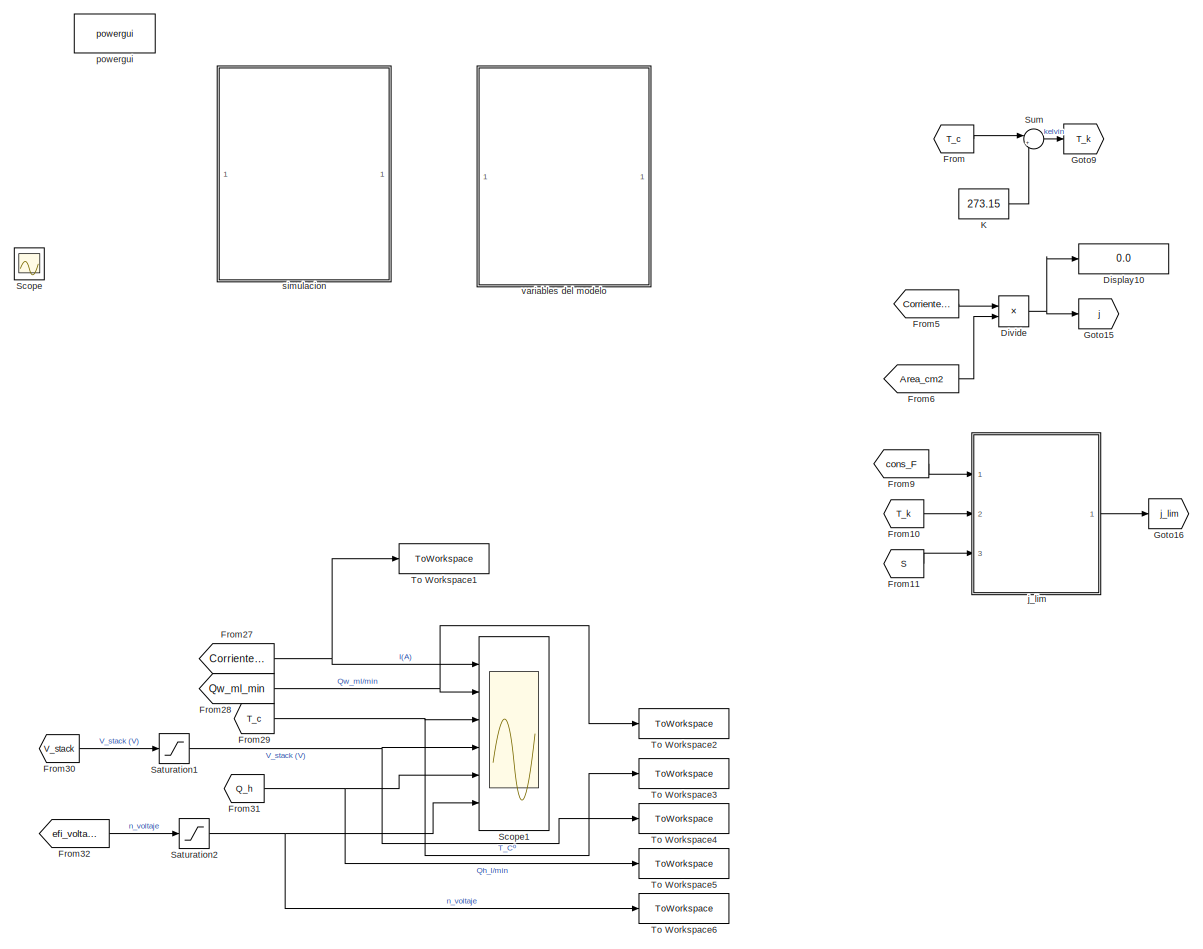
[diagram: root canvas - part 1/3, left side, full height]
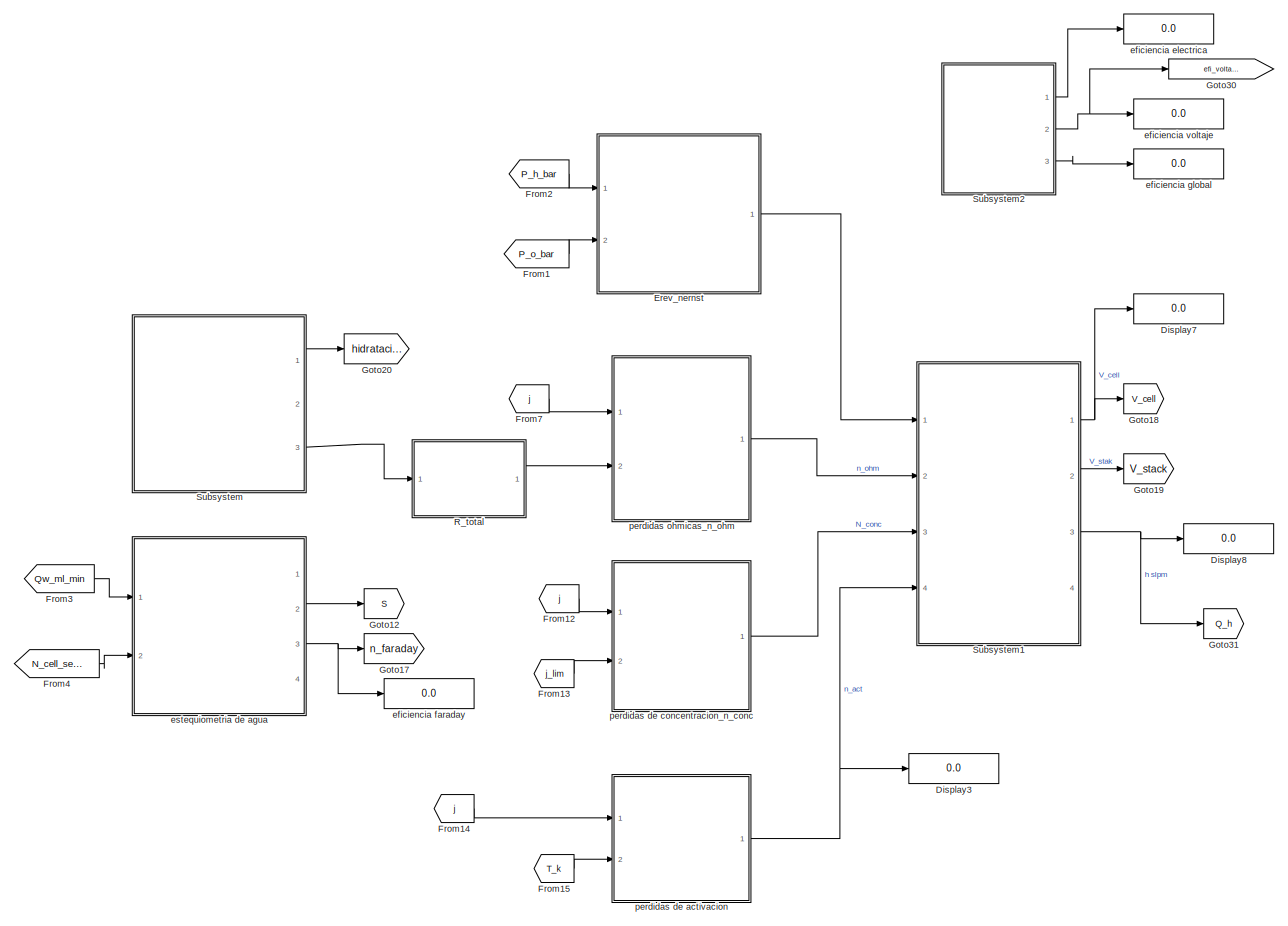
[diagram: root canvas - part 2/3, middle right region]
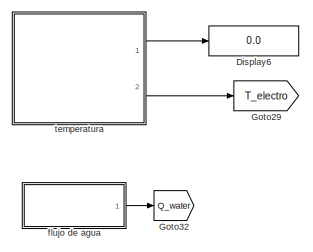
[diagram: root canvas - part 3/3, bottom right region]
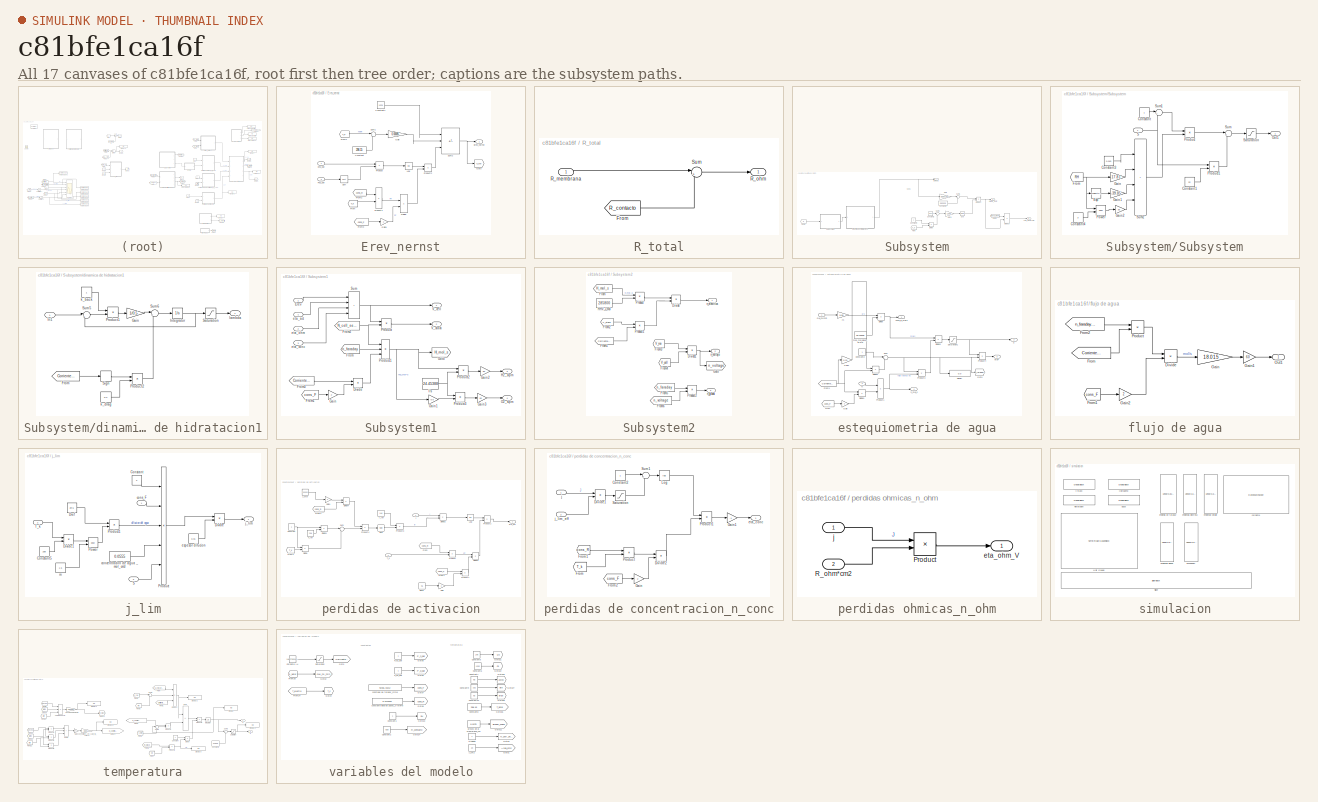
[diagram: thumbnail index - all 17 canvases of the model, root first then tree order]
MODEL slx_c81bfe1ca16f
KIND model
CONFIG AbsTol = auto
CONFIG EnableMultiTasking = off
CONFIG FixedStep = auto
CONFIG MaxStep = auto
CONFIG MinStep = auto
CONFIG RelTol = 1e-3
CONFIG SampleTimeConstraint = Unconstrained
CONFIG SolverName = VariableStepAuto
CONFIG StartTime = 0.0
CONFIG StopTime = inf
BLOCK [Display] Display10
  Decimation = 1
  Ports = [1]
BLOCK [Display] Display3
  Decimation = 1
  Ports = [1]
BLOCK [Display] Display6
  Decimation = 1
  Ports = [1]
BLOCK [Display] Display7
  Decimation = 1
  Ports = [1]
BLOCK [Display] Display8
  Decimation = 1
  Ports = [1]
BLOCK [Product] Divide
  Inputs = */
  Ports = [2, 1]
BLOCK [SubSystem] Erev_nernst
  Ports = [2, 1]
  RequestExecContextInheritance = off
BLOCK [Constant] Erev_nernst/Constant
  Value = 298.15
BLOCK [Constant] Erev_nernst/Constant1
  Value = 1.229
BLOCK [Product] Erev_nernst/Divide
  Inputs = */
  Ports = [2, 1]
BLOCK [Outport] Erev_nernst/Erev_nernst
BLOCK [From] Erev_nernst/From
  GotoTag = T_k
  TagVisibility = global
BLOCK [From] Erev_nernst/From1
  GotoTag = T_k
  TagVisibility = global
BLOCK [From] Erev_nernst/From2
  GotoTag = cons_R
  TagVisibility = global
BLOCK [From] Erev_nernst/From3
  GotoTag = cons_F
  TagVisibility = global
BLOCK [Gain] Erev_nernst/Gain
  Gain = 0.00085
BLOCK [Gain] Erev_nernst/Gain1
  Gain = 2
BLOCK [Goto] Erev_nernst/Goto
  GotoTag = V_rev
  TagVisibility = global
BLOCK [Math] Erev_nernst/Log
  Operator = log
  Ports = [1, 1]
BLOCK [Inport] Erev_nernst/Po2_bar
  Port = 2
BLOCK [Product] Erev_nernst/Product
  Ports = [2, 1]
BLOCK [Product] Erev_nernst/Product1
  Ports = [2, 1]
BLOCK [Product] Erev_nernst/Product2
  Ports = [2, 1]
BLOCK [Sqrt] Erev_nernst/Sqrt
BLOCK [Sum] Erev_nernst/Sum1
  Inputs = |+-
  Ports = [2, 1]
BLOCK [Sum] Erev_nernst/Sum2
  IconShape = rectangular
  Inputs = |+-+
  Ports = [3, 1]
BLOCK [Inport] Erev_nernst/ph2_bar
BLOCK [From] From
  GotoTag = T_c
  TagVisibility = global
BLOCK [From] From1
  GotoTag = P_o_bar
  TagVisibility = global
BLOCK [From] From10
  GotoTag = T_k
  TagVisibility = global
BLOCK [From] From11
  GotoTag = S
  TagVisibility = global
BLOCK [From] From12
  GotoTag = j
  TagVisibility = global
BLOCK [From] From13
  GotoTag = j_lim
  TagVisibility = global
BLOCK [From] From14
  GotoTag = j
  TagVisibility = global
BLOCK [From] From15
  GotoTag = T_k
  TagVisibility = global
BLOCK [From] From2
  GotoTag = P_h_bar
  TagVisibility = global
BLOCK [From] From27
  GotoTag = Corriente_A
  TagVisibility = global
BLOCK [From] From28
  GotoTag = Qw_ml_min
  TagVisibility = global
BLOCK [From] From29
  GotoTag = T_c
  TagVisibility = global
BLOCK [From] From3
  GotoTag = Qw_ml_min
  TagVisibility = global
BLOCK [From] From30
  GotoTag = V_stack
  TagVisibility = global
BLOCK [From] From31
  GotoTag = Q_h
  TagVisibility = global
BLOCK [From] From32
  GotoTag = efi_voltaje
  TagVisibility = global
BLOCK [From] From4
  GotoTag = N_cell_serie
  TagVisibility = global
BLOCK [From] From5
  GotoTag = Corriente_A
  TagVisibility = global
BLOCK [From] From6
  GotoTag = Area_cm2
  TagVisibility = global
BLOCK [From] From7
  GotoTag = j
  TagVisibility = global
BLOCK [From] From9
  GotoTag = cons_F
  TagVisibility = global
BLOCK [Goto] Goto12
  GotoTag = S
  TagVisibility = global
BLOCK [Goto] Goto15
  GotoTag = j
  TagVisibility = global
BLOCK [Goto] Goto16
  GotoTag = j_lim
  TagVisibility = global
BLOCK [Goto] Goto17
  GotoTag = n_faraday
  TagVisibility = global
BLOCK [Goto] Goto18
  GotoTag = V_cell
  TagVisibility = global
BLOCK [Goto] Goto19
  GotoTag = V_stack
  TagVisibility = global
BLOCK [Goto] Goto20
  GotoTag = hidratacion
  TagVisibility = global
BLOCK [Goto] Goto29
  GotoTag = T_electro
  TagVisibility = global
BLOCK [Goto] Goto30
  GotoTag = efi_voltaje
  TagVisibility = global
BLOCK [Goto] Goto31
  GotoTag = Q_h
  TagVisibility = global
BLOCK [Goto] Goto32
  GotoTag = Q_water
  TagVisibility = global
BLOCK [Goto] Goto9
  GotoTag = T_k
  TagVisibility = global
BLOCK [Constant] K
  Value = 273.15
BLOCK [SubSystem] R_total
  Ports = [1, 1]
  RequestExecContextInheritance = off
BLOCK [From] R_total/From
  GotoTag = R_contacto
  TagVisibility = global
BLOCK [Inport] R_total/R_membrana
BLOCK [Outport] R_total/R_ohm
BLOCK [Sum] R_total/Sum
  Inputs = |++
  Ports = [2, 1]
BLOCK [Saturate] Saturation1
  LowerLimit = 0
  UpperLimit = 3
BLOCK [Saturate] Saturation2
  LowerLimit = 0
  UpperLimit = 1.1
BLOCK [Scope] Scope
  Floating = off
  NumInputPorts = 1
  Ports = [1]
  ScopeSpecificationString = Simulink.scopes.TimeScopeBlockCfg('CurrentConfiguration', extmgr.ConfigurationSet(extmgr.Configuration('Core','General UI',true),extmgr.Configuration('Core','Source UI',true),extmgr.Configuration('Sources','WiredSimulink',true),extmgr.Configuration('Visuals','Time Domain',true,'SerializedDisplays',{struct('MinYLimReal','-1.00000','MaxYLimReal','1.00000','YLabelReal','','MinYLimMag','0.00000','MaxY...<+1392ch>
BLOCK [Scope] Scope1
  Floating = off
  NumInputPorts = 6
  Ports = [6]
  ScopeSpecificationString = Simulink.scopes.TimeScopeBlockCfg('CurrentConfiguration', extmgr.ConfigurationSet(extmgr.Configuration('Core','General UI',true,'FigureColor',[1 1 1]),extmgr.Configuration('Core','Source UI',true),extmgr.Configuration('Sources','WiredSimulink',true,'DataLoggingVariableName','ScopeData1'),extmgr.Configuration('Visuals','Time Domain',true,'SerializedDisplays',{struct('MinYLimReal','-2.57054','MaxYLi...<+5587ch>
BLOCK [SubSystem] Subsystem
  Ports = [0, 3]
  RequestExecContextInheritance = off
BLOCK [Outport] Subsystem/ASR_Ohm*cm2
  Port = 3
BLOCK [Constant] Subsystem/Constant1
  Value = 0.00326
BLOCK [Constant] Subsystem/Constant2
  Value = 1/303
BLOCK [Constant] Subsystem/Constant4
BLOCK [Product] Subsystem/Divide
  Inputs = */
  Ports = [2, 1]
BLOCK [Product] Subsystem/Divide1
  Inputs = */
  Ports = [2, 1]
BLOCK [Math] Subsystem/Exp
  Ports = [1, 1]
BLOCK [From] Subsystem/From
  GotoTag = T_k
  TagVisibility = global
BLOCK [From] Subsystem/From1
  GotoTag = grosor_mem
  TagVisibility = global
BLOCK [From] Subsystem/From2
  GotoTag = S
  TagVisibility = global
BLOCK [Gain] Subsystem/Gain
  Gain = 0.005139
BLOCK [Gain] Subsystem/Gain1
  Gain = 1268
BLOCK [Product] Subsystem/Product
  Ports = [2, 1]
BLOCK [SubSystem] Subsystem/Subsystem
  Ports = [1, 1]
  RequestExecContextInheritance = off
BLOCK [Constant] Subsystem/Subsystem/Constant
BLOCK [Constant] Subsystem/Subsystem/Constant1
  Value = 22
BLOCK [Constant] Subsystem/Subsystem/Constant3
  Value = 0.043
BLOCK [Constant] Subsystem/Subsystem/Constant4
  Value = 3
BLOCK [Math] Subsystem/Subsystem/Exp
  Operator = magnitude^2
  Ports = [1, 1]
BLOCK [From] Subsystem/Subsystem/From
  GotoTag = RH
  TagVisibility = global
BLOCK [Gain] Subsystem/Subsystem/Gain
  Gain = 17.81
BLOCK [Gain] Subsystem/Subsystem/Gain1
  Gain = -39.85
BLOCK [Gain] Subsystem/Subsystem/Gain2
  Gain = 36
BLOCK [Outport] Subsystem/Subsystem/Out1
BLOCK [Math] Subsystem/Subsystem/Power
  Operator = pow
  Ports = [2, 1]
BLOCK [Product] Subsystem/Subsystem/Product
  Ports = [2, 1]
BLOCK [Product] Subsystem/Subsystem/Product1
  Ports = [2, 1]
BLOCK [Inport] Subsystem/Subsystem/S
BLOCK [Saturate] Subsystem/Subsystem/Saturation
  LowerLimit = 0
  UpperLimit = 22
BLOCK [Sum] Subsystem/Subsystem/Sum
  Inputs = |++
  Ports = [2, 1]
BLOCK [Sum] Subsystem/Subsystem/Sum1
  Inputs = |+-
  Ports = [2, 1]
BLOCK [Sum] Subsystem/Subsystem/Sum2
  IconShape = rectangular
  Inputs = |++++
  Ports = [4, 1]
BLOCK [Sum] Subsystem/Sum1
  Inputs = |+-
  Ports = [2, 1]
BLOCK [Sum] Subsystem/Sum2
  Inputs = |+-
  Ports = [2, 1]
BLOCK [SubSystem] Subsystem/dinamica de hidratacion1
  Ports = [1, 1]
  RequestExecContextInheritance = off
BLOCK [From] Subsystem/dinamica de hidratacion1/From
  GotoTag = Corriente_A
  TagVisibility = global
BLOCK [Gain] Subsystem/dinamica de hidratacion1/Gain
  Gain = 1/0.5
BLOCK [Inport] Subsystem/dinamica de hidratacion1/In1
BLOCK [Integrator] Subsystem/dinamica de hidratacion1/Integrator
  Ports = [1, 1]
BLOCK [Product] Subsystem/dinamica de hidratacion1/Product1
  Ports = [2, 1]
BLOCK [Product] Subsystem/dinamica de hidratacion1/Product2
  Ports = [2, 1]
BLOCK [Saturate] Subsystem/dinamica de hidratacion1/Saturation
  LowerLimit = 0
  UpperLimit = 22
BLOCK [Signum] Subsystem/dinamica de hidratacion1/Sign
BLOCK [Sum] Subsystem/dinamica de hidratacion1/Sum5
  Inputs = |+-
  Ports = [2, 1]
BLOCK [Sum] Subsystem/dinamica de hidratacion1/Sum6
  Inputs = |++
  Ports = [2, 1]
BLOCK [Constant] Subsystem/dinamica de hidratacion1/k_back
BLOCK [Constant] Subsystem/dinamica de hidratacion1/k_drag
  Value = 0.2
BLOCK [Outport] Subsystem/dinamica de hidratacion1/lambda
BLOCK [Outport] Subsystem/lambda
BLOCK [Outport] Subsystem/sigma_S//cm
  Port = 2
BLOCK [SubSystem] Subsystem1
  Ports = [4, 4]
  RequestExecContextInheritance = off
BLOCK [Product] Subsystem1/Divide
  Inputs = */
  Ports = [2, 1]
BLOCK [Inport] Subsystem1/Erev
BLOCK [From] Subsystem1/From
  GotoTag = n_faraday
  TagVisibility = global
BLOCK [From] Subsystem1/From1
  GotoTag = cons_F
  TagVisibility = global
BLOCK [From] Subsystem1/From2
  GotoTag = N_cell_serie
  TagVisibility = global
BLOCK [From] Subsystem1/From3
  GotoTag = Corriente_A
  TagVisibility = global
BLOCK [Gain] Subsystem1/Gain
  Gain = 2
BLOCK [Gain] Subsystem1/Gain1
  Gain = 0.5
BLOCK [Gain] Subsystem1/Gain2
  Gain = 60
BLOCK [Gain] Subsystem1/Gain3
  Gain = 60
BLOCK [Goto] Subsystem1/Goto
  GotoTag = H_mol_s
  TagVisibility = global
BLOCK [Outport] Subsystem1/H2_slpm
  Port = 3
BLOCK [Outport] Subsystem1/O2_slpm
  Port = 4
BLOCK [Product] Subsystem1/Product
  Ports = [2, 1]
BLOCK [Product] Subsystem1/Product1
  Inputs = 3
  Ports = [3, 1]
BLOCK [Product] Subsystem1/Product2
  Ports = [2, 1]
BLOCK [Product] Subsystem1/Product3
  Ports = [2, 1]
BLOCK [Sum] Subsystem1/Sum
  IconShape = rectangular
  Inputs = |++++
  Ports = [4, 1]
BLOCK [Outport] Subsystem1/V_cell
BLOCK [Outport] Subsystem1/V_stack
  Port = 2
BLOCK [Inport] Subsystem1/eta_act
  Port = 4
BLOCK [Inport] Subsystem1/eta_conc
  Port = 3
BLOCK [Inport] Subsystem1/eta_ohm
  Port = 2
BLOCK [Constant] Subsystem1/l//s
  Value = 24.45388
BLOCK [SubSystem] Subsystem2
  Ports = [0, 3]
  RequestExecContextInheritance = off
BLOCK [Product] Subsystem2/Divide
  Inputs = */
  Ports = [2, 1]
BLOCK [Product] Subsystem2/Divide1
  Inputs = */
  Ports = [2, 1]
BLOCK [From] Subsystem2/From
  GotoTag = H_mol_s
  TagVisibility = global
BLOCK [From] Subsystem2/From1
  GotoTag = Corriente_A
  TagVisibility = global
BLOCK [From] Subsystem2/From2
  GotoTag = V_stack
  TagVisibility = global
BLOCK [From] Subsystem2/From3
  GotoTag = V_rev
  TagVisibility = global
BLOCK [From] Subsystem2/From4
  GotoTag = V_cell
  TagVisibility = global
BLOCK [From] Subsystem2/From5
  GotoTag = n_faraday
  TagVisibility = global
BLOCK [From] Subsystem2/From6
  GotoTag = n_voltage
BLOCK [Goto] Subsystem2/Goto
  GotoTag = n_voltage
BLOCK [Constant] Subsystem2/HHV_J_mol
  Value = 285800
BLOCK [Product] Subsystem2/Product
  Ports = [2, 1]
BLOCK [Product] Subsystem2/Product1
  Ports = [2, 1]
BLOCK [Product] Subsystem2/Product2
  Ports = [2, 1]
BLOCK [Outport] Subsystem2/n_electrica
BLOCK [Outport] Subsystem2/n_global
  Port = 3
BLOCK [Outport] Subsystem2/n_voltaje
  Port = 2
BLOCK [Sum] Sum
  Inputs = |++
  Ports = [2, 1]
BLOCK [ToWorkspace] To Workspace1
  FixptAsFi = on
  MaxDataPoints = inf
  Ports = [1]
  SampleTime = -1
  SaveFormat = Timeseries
  VariableName = I
BLOCK [ToWorkspace] To Workspace2
  FixptAsFi = on
  MaxDataPoints = inf
  Ports = [1]
  SampleTime = -1
  SaveFormat = Timeseries
  VariableName = Qw
BLOCK [ToWorkspace] To Workspace3
  FixptAsFi = on
  MaxDataPoints = inf
  Ports = [1]
  SampleTime = -1
  SaveFormat = Timeseries
  VariableName = T
BLOCK [ToWorkspace] To Workspace4
  FixptAsFi = on
  MaxDataPoints = inf
  Ports = [1]
  SampleTime = -1
  SaveFormat = Timeseries
  VariableName = tension
BLOCK [ToWorkspace] To Workspace5
  FixptAsFi = on
  MaxDataPoints = inf
  Ports = [1]
  SampleTime = -1
  SaveFormat = Timeseries
  VariableName = Qh
BLOCK [ToWorkspace] To Workspace6
  FixptAsFi = on
  MaxDataPoints = inf
  Ports = [1]
  SampleTime = -1
  SaveFormat = Timeseries
  VariableName = n_v
BLOCK [Display] eficiencia electrica
  Decimation = 1
  Ports = [1]
BLOCK [Display] eficiencia faraday
  Decimation = 1
  Ports = [1]
BLOCK [Display] eficiencia global
  Decimation = 1
  Ports = [1]
BLOCK [Display] eficiencia voltaje
  Decimation = 1
  Ports = [1]
BLOCK [SubSystem] estequiometria de agua
  Ports = [2, 4]
  RequestExecContextInheritance = off
BLOCK [Constant] estequiometria de agua/Constant2
BLOCK [Display] estequiometria de agua/Display
  Decimation = 1
  Ports = [1]
BLOCK [Product] estequiometria de agua/Divide
  Inputs = */
  Ports = [2, 1]
BLOCK [Product] estequiometria de agua/Divide1
  Inputs = */
  Ports = [2, 1]
BLOCK [Product] estequiometria de agua/Divide2
  Inputs = */
  Ports = [2, 1]
BLOCK [Product] estequiometria de agua/Divide3
  Inputs = */
  Ports = [2, 1]
BLOCK [From] estequiometria de agua/From
  GotoTag = cons_F
  TagVisibility = global
BLOCK [From] estequiometria de agua/From1
  GotoTag = Corriente_A
  TagVisibility = global
BLOCK [Gain] estequiometria de agua/Gain
  Gain = 2
BLOCK [Gain] estequiometria de agua/Gain1
  Gain = 0.01
BLOCK [Goto] estequiometria de agua/Goto
  GotoTag = n_faraday_base
  TagVisibility = global
BLOCK [Inport] estequiometria de agua/N
  Port = 2
BLOCK [Product] estequiometria de agua/Product1
  Ports = [2, 1]
BLOCK [Product] estequiometria de agua/Product3
  Ports = [2, 1]
BLOCK [Product] estequiometria de agua/Product4
  Ports = [2, 1]
BLOCK [Inport] estequiometria de agua/Qw_ml//min
BLOCK [Outport] estequiometria de agua/S
  Port = 2
BLOCK [Saturate] estequiometria de agua/Saturation1
  LowerLimit = 0
  UpperLimit = 1
BLOCK [Sum] estequiometria de agua/Sum
  Inputs = |+-
  Ports = [2, 1]
BLOCK [Outport] estequiometria de agua/etaF
  Port = 3
BLOCK [Outport] estequiometria de agua/h_mol_s
  Port = 4
BLOCK [Gain] estequiometria de agua/l//s
  Gain = 1/60
BLOCK [Constant] estequiometria de agua/mas_mol_agua_g//mol
  Value = 18.01528
BLOCK [Outport] estequiometria de agua/nh2o_in_mol//s
BLOCK [SubSystem] flujo de agua
  Ports = [0, 1]
  RequestExecContextInheritance = off
BLOCK [Product] flujo de agua/Divide
  Inputs = */
  Ports = [2, 1]
BLOCK [From] flujo de agua/From
  GotoTag = Corriente_A
  TagVisibility = global
BLOCK [From] flujo de agua/From1
  GotoTag = cons_F
  TagVisibility = global
BLOCK [From] flujo de agua/From2
  GotoTag = n_faraday_base
  TagVisibility = global
BLOCK [Gain] flujo de agua/Gain
  Gain = 18.015
BLOCK [Gain] flujo de agua/Gain1
  Gain = 60
BLOCK [Gain] flujo de agua/Gain2
  Gain = 2
BLOCK [Outport] flujo de agua/Out1
BLOCK [Product] flujo de agua/Product
  Ports = [2, 1]
BLOCK [SubSystem] j_lim
  Ports = [3, 1]
  RequestExecContextInheritance = off
BLOCK [Constant] j_lim/Constant
  Value = 2
BLOCK [Constant] j_lim/Constant5
  Value = 298
BLOCK [Product] j_lim/Divide
  Inputs = */
  Ports = [2, 1]
BLOCK [Product] j_lim/Divide1
  Inputs = */
  Ports = [2, 1]
BLOCK [Constant] j_lim/Dref
  Value = 2e-6
BLOCK [Math] j_lim/Power
  Operator = pow
  Ports = [2, 1]
BLOCK [Product] j_lim/Product
  Inputs = 5
  Ports = [5, 1]
BLOCK [Product] j_lim/Product1
  Ports = [2, 1]
BLOCK [Inport] j_lim/S
  Port = 3
BLOCK [Inport] j_lim/T_k
  Port = 2
BLOCK [Constant] j_lim/concentracion de agua _mol_cm3
  Value = 0.0555
BLOCK [Inport] j_lim/cons_F
BLOCK [Constant] j_lim/espesor difucion
  Value = 0.01
BLOCK [Outport] j_lim/j_lim
BLOCK [Constant] j_lim/m
  Value = 1.5
BLOCK [SubSystem] perdidas de activacion
  Ports = [2, 1]
  RequestExecContextInheritance = off
BLOCK [Constant] perdidas de activacion/Constant
BLOCK [Product] perdidas de activacion/Divide
  Inputs = */
  Ports = [2, 1]
BLOCK [Product] perdidas de activacion/Divide1
  Inputs = */
  Ports = [2, 1]
BLOCK [Product] perdidas de activacion/Divide2
  Inputs = */
  Ports = [2, 1]
BLOCK [Product] perdidas de activacion/Divide3
  Inputs = */
  Ports = [2, 1]
BLOCK [Product] perdidas de activacion/Divide4
  Inputs = */
  Ports = [2, 1]
BLOCK [Math] perdidas de activacion/Exp
  Ports = [1, 1]
BLOCK [From] perdidas de activacion/From
  GotoTag = cons_R
  TagVisibility = global
BLOCK [From] perdidas de activacion/From1
  GotoTag = cons_F
  TagVisibility = global
BLOCK [From] perdidas de activacion/From2
  GotoTag = cons_R
  TagVisibility = global
BLOCK [From] perdidas de activacion/From3
  GotoTag = T_k
  TagVisibility = global
BLOCK [Gain] perdidas de activacion/Gain
  Gain = 2
BLOCK [Gain] perdidas de activacion/Gain1
  Gain = -1
BLOCK [Constant] perdidas de activacion/J_mol
  Value = 60000
BLOCK [Math] perdidas de activacion/Log
  Operator = log
  Ports = [1, 1]
BLOCK [Product] perdidas de activacion/Product
  Ports = [2, 1]
BLOCK [Product] perdidas de activacion/Product1
  Ports = [2, 1]
BLOCK [Product] perdidas de activacion/Product2
  Ports = [2, 1]
BLOCK [Product] perdidas de activacion/Product3
  Ports = [2, 1]
BLOCK [Product] perdidas de activacion/Product4
  Ports = [2, 1]
BLOCK [Sum] perdidas de activacion/Sum
  Inputs = |-+
  Ports = [2, 1]
BLOCK [Inport] perdidas de activacion/T_k
  Port = 2
BLOCK [Constant] perdidas de activacion/T_ref
  Value = 298
BLOCK [Constant] perdidas de activacion/alpha
  Value = 0.5
BLOCK [Outport] perdidas de activacion/eta_act
BLOCK [Inport] perdidas de activacion/j
BLOCK [Constant] perdidas de activacion/j _ref
  Value = 1e-6
BLOCK [SubSystem] perdidas de concentracion_n_conc
  Ports = [2, 1]
  RequestExecContextInheritance = off
BLOCK [Constant] perdidas de concentracion_n_conc/Constant2
BLOCK [Product] perdidas de concentracion_n_conc/Divide1
  Inputs = */
  Ports = [2, 1]
BLOCK [Product] perdidas de concentracion_n_conc/Divide2
  Inputs = */
  Ports = [2, 1]
BLOCK [From] perdidas de concentracion_n_conc/From
  GotoTag = T_k
  TagVisibility = global
BLOCK [From] perdidas de concentracion_n_conc/From1
  GotoTag = cons_R
  TagVisibility = global
BLOCK [From] perdidas de concentracion_n_conc/From2
  GotoTag = cons_F
  TagVisibility = global
BLOCK [Gain] perdidas de concentracion_n_conc/Gain
  Gain = 2
BLOCK [Gain] perdidas de concentracion_n_conc/Gain1
  Gain = -1
BLOCK [Math] perdidas de concentracion_n_conc/Log
  Operator = log
  Ports = [1, 1]
BLOCK [Product] perdidas de concentracion_n_conc/Product
  Ports = [2, 1]
BLOCK [Product] perdidas de concentracion_n_conc/Product1
  Ports = [2, 1]
BLOCK [Saturate] perdidas de concentracion_n_conc/Saturation
  LowerLimit = 0
  UpperLimit = 0.999
BLOCK [Sum] perdidas de concentracion_n_conc/Sum1
  Inputs = |+-
  Ports = [2, 1]
BLOCK [Outport] perdidas de concentracion_n_conc/eta_conc
BLOCK [Inport] perdidas de concentracion_n_conc/j
BLOCK [Inport] perdidas de concentracion_n_conc/j_lim_eff
  Port = 2
BLOCK [SubSystem] perdidas ohmicas_n_ohm
  Ports = [2, 1]
  RequestExecContextInheritance = off
BLOCK [Product] perdidas ohmicas_n_ohm/Product
  Ports = [2, 1]
BLOCK [Inport] perdidas ohmicas_n_ohm/R_ohm*cm2
  Port = 2
BLOCK [Outport] perdidas ohmicas_n_ohm/eta_ohm_V
BLOCK [Inport] perdidas ohmicas_n_ohm/j
BLOCK [Reference] powergui  REF=spspowerguiLib/powergui
  Ports = []
  Priority = 1
  SourceBlock = spspowerguiLib/powergui
  SourceProductBaseCode = PS
  SourceType = PSB option menu block
BLOCK [SubSystem] simulacion
  Ports = []
  RequestExecContextInheritance = off
BLOCK [SemiCircularGaugeBlock] simulacion/Half Gauge
  ScaleMax = 80
  ScaleMin = 20
BLOCK [DisplayBlock] simulacion/Hidrogeno
  Format = short
  LabelPosition = Hide
  Transparency = 1
BLOCK [SliderBlock] simulacion/Slider
  ScaleMax = 40
BLOCK [DisplayBlock] simulacion/V stack
  Format = short
  LabelPosition = Hide
  Transparency = 1
BLOCK [DisplayBlock] simulacion/agua
  Format = short
  LabelPosition = Hide
  Transparency = 1
BLOCK [DashboardScope] simulacion/corriente
  Ymax = 40
BLOCK [LinearGaugeBlock] simulacion/eficiencia electrica
  LabelPosition = Hide
  ScaleMax = 1
BLOCK [LinearGaugeBlock] simulacion/eficiencia global
  LabelPosition = Hide
  ScaleMax = 1
BLOCK [LinearGaugeBlock] simulacion/eficiencia voltaje
  LabelPosition = Hide
  ScaleMax = 1
BLOCK [LinearGaugeBlock] simulacion/eficienia de faraday
  LabelPosition = Hide
  ScaleMax = 1
BLOCK [DisplayBlock] simulacion/hidratacion
  Format = short
  LabelPosition = Hide
  Transparency = 1
BLOCK [LinearGaugeBlock] simulacion/inundacion
  LabelPosition = Hide
  ScaleMax = 1
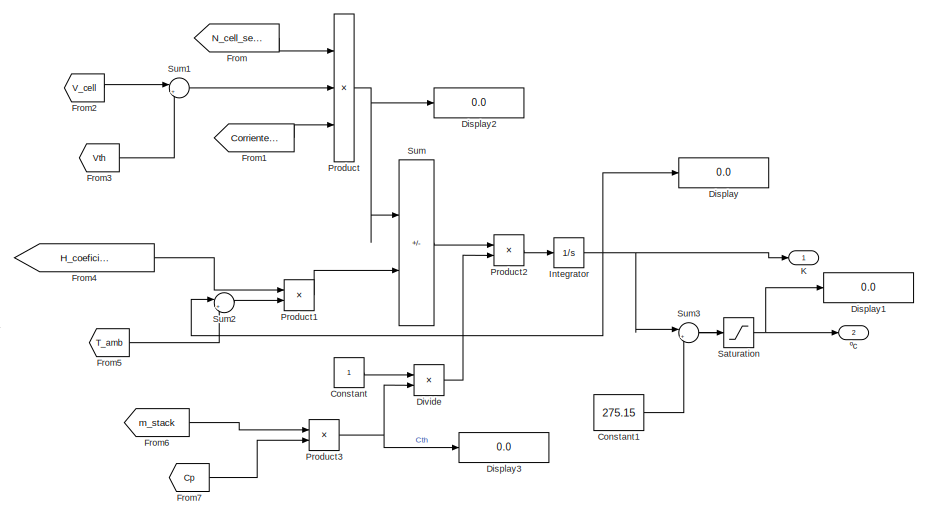
[diagram: temperatura - part 1/2, right side, full height]
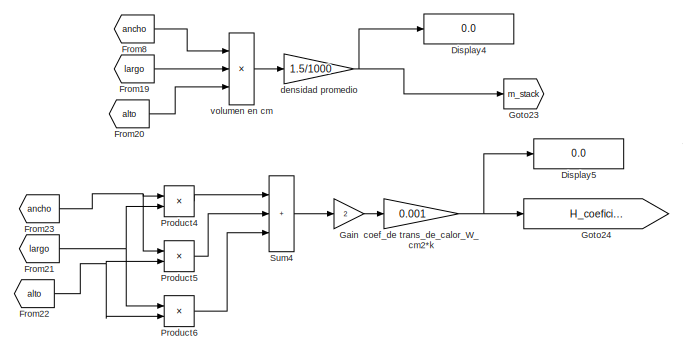
[diagram: temperatura - part 2/2, middle left region]
BLOCK [SubSystem] temperatura
  Ports = [0, 2]
  RequestExecContextInheritance = off
BLOCK [Constant] temperatura/Constant
BLOCK [Constant] temperatura/Constant1
  Value = 275.15
BLOCK [Display] temperatura/Display
  Decimation = 1
  Ports = [1]
BLOCK [Display] temperatura/Display1
  Decimation = 1
  Ports = [1]
BLOCK [Display] temperatura/Display2
  Decimation = 1
  Ports = [1]
BLOCK [Display] temperatura/Display3
  Decimation = 1
  Ports = [1]
BLOCK [Display] temperatura/Display4
  Decimation = 1
  Ports = [1]
BLOCK [Display] temperatura/Display5
  Decimation = 1
  Ports = [1]
BLOCK [Product] temperatura/Divide
  Inputs = */
  Ports = [2, 1]
BLOCK [From] temperatura/From
  GotoTag = N_cell_serie
  TagVisibility = global
BLOCK [From] temperatura/From1
  GotoTag = Corriente_A
  TagVisibility = global
BLOCK [From] temperatura/From19
  GotoTag = largo
  TagVisibility = global
BLOCK [From] temperatura/From2
  GotoTag = V_cell
  TagVisibility = global
BLOCK [From] temperatura/From20
  GotoTag = alto
  TagVisibility = global
BLOCK [From] temperatura/From21
  GotoTag = largo
  TagVisibility = global
BLOCK [From] temperatura/From22
  GotoTag = alto
  TagVisibility = global
BLOCK [From] temperatura/From23
  GotoTag = ancho
  TagVisibility = global
BLOCK [From] temperatura/From3
  GotoTag = Vth
  TagVisibility = global
BLOCK [From] temperatura/From4
  GotoTag = H_coeficiente_transf_calor
  TagVisibility = global
BLOCK [From] temperatura/From5
  GotoTag = T_amb
  TagVisibility = global
BLOCK [From] temperatura/From6
  GotoTag = m_stack
  TagVisibility = global
BLOCK [From] temperatura/From7
  GotoTag = Cp
  TagVisibility = global
BLOCK [From] temperatura/From8
  GotoTag = ancho
  TagVisibility = global
BLOCK [Gain] temperatura/Gain
  Gain = 2
BLOCK [Goto] temperatura/Goto23
  GotoTag = m_stack
  TagVisibility = global
BLOCK [Goto] temperatura/Goto24
  GotoTag = H_coeficiente_transf_calor
  TagVisibility = global
BLOCK [Integrator] temperatura/Integrator
  Ports = [1, 1]
BLOCK [Outport] temperatura/K
BLOCK [Product] temperatura/Product
  Inputs = 3
  Ports = [3, 1]
BLOCK [Product] temperatura/Product1
  Ports = [2, 1]
BLOCK [Product] temperatura/Product2
  Ports = [2, 1]
BLOCK [Product] temperatura/Product3
  Ports = [2, 1]
BLOCK [Product] temperatura/Product4
  Ports = [2, 1]
BLOCK [Product] temperatura/Product5
  Ports = [2, 1]
BLOCK [Product] temperatura/Product6
  Ports = [2, 1]
BLOCK [Saturate] temperatura/Saturation
  LowerLimit = 10
  UpperLimit = 80
BLOCK [Sum] temperatura/Sum
  IconShape = rectangular
  Inputs = |+-
  Ports = [2, 1]
BLOCK [Sum] temperatura/Sum1
  Inputs = |+-
  Ports = [2, 1]
BLOCK [Sum] temperatura/Sum2
  Inputs = |+-
  Ports = [2, 1]
BLOCK [Sum] temperatura/Sum3
  Inputs = |+-
  Ports = [2, 1]
BLOCK [Sum] temperatura/Sum4
  IconShape = rectangular
  Inputs = |+++
  Ports = [3, 1]
BLOCK [Gain] temperatura/coef_de trans_de_calor_W_cm2*k
  Gain = 0.001
BLOCK [Gain] temperatura/densidad promedio
  Gain = 1.5/1000
BLOCK [Product] temperatura/volumen en cm
  Inputs = 3
  Ports = [3, 1]
BLOCK [Outport] temperatura/ºc
  Port = 2
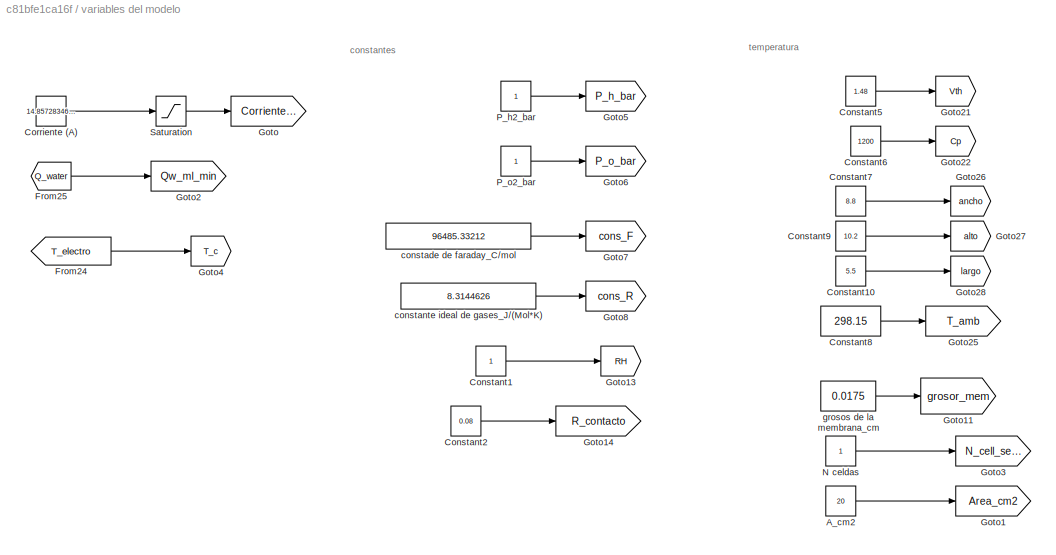
BLOCK [SubSystem] variables del modelo
  Ports = []
  RequestExecContextInheritance = off
BLOCK [Constant] variables del modelo/A_cm2
  Value = 20
BLOCK [Constant] variables del modelo/Constant1
BLOCK [Constant] variables del modelo/Constant10
  Value = 5.5
BLOCK [Constant] variables del modelo/Constant2
  Value = 0.08
BLOCK [Constant] variables del modelo/Constant5
  Value = 1.48
BLOCK [Constant] variables del modelo/Constant6
  Value = 1200
BLOCK [Constant] variables del modelo/Constant7
  Value = 8.8
BLOCK [Constant] variables del modelo/Constant8
  Value = 298.15
BLOCK [Constant] variables del modelo/Constant9
  Value = 10.2
BLOCK [Constant] variables del modelo/Corriente (A)
  Value = 14.85728346456693
BLOCK [From] variables del modelo/From24
  GotoTag = T_electro
  TagVisibility = global
BLOCK [From] variables del modelo/From25
  GotoTag = Q_water
  TagVisibility = global
BLOCK [Goto] variables del modelo/Goto
  GotoTag = Corriente_A
  TagVisibility = global
BLOCK [Goto] variables del modelo/Goto1
  GotoTag = Area_cm2
  TagVisibility = global
BLOCK [Goto] variables del modelo/Goto11
  GotoTag = grosor_mem
  TagVisibility = global
BLOCK [Goto] variables del modelo/Goto13
  GotoTag = RH
  TagVisibility = global
BLOCK [Goto] variables del modelo/Goto14
  GotoTag = R_contacto
  TagVisibility = global
BLOCK [Goto] variables del modelo/Goto2
  GotoTag = Qw_ml_min
  TagVisibility = global
BLOCK [Goto] variables del modelo/Goto21
  GotoTag = Vth
  TagVisibility = global
BLOCK [Goto] variables del modelo/Goto22
  GotoTag = Cp
  TagVisibility = global
BLOCK [Goto] variables del modelo/Goto25
  GotoTag = T_amb
  TagVisibility = global
BLOCK [Goto] variables del modelo/Goto26
  GotoTag = ancho
  TagVisibility = global
BLOCK [Goto] variables del modelo/Goto27
  GotoTag = alto
  TagVisibility = global
BLOCK [Goto] variables del modelo/Goto28
  GotoTag = largo
  TagVisibility = global
BLOCK [Goto] variables del modelo/Goto3
  GotoTag = N_cell_serie
  TagVisibility = global
BLOCK [Goto] variables del modelo/Goto4
  GotoTag = T_c
  TagVisibility = global
BLOCK [Goto] variables del modelo/Goto5
  GotoTag = P_h_bar
  TagVisibility = global
BLOCK [Goto] variables del modelo/Goto6
  GotoTag = P_o_bar
  TagVisibility = global
BLOCK [Goto] variables del modelo/Goto7
  GotoTag = cons_F
  TagVisibility = global
BLOCK [Goto] variables del modelo/Goto8
  GotoTag = cons_R
  TagVisibility = global
BLOCK [Constant] variables del modelo/N celdas
BLOCK [Constant] variables del modelo/P_h2_bar
BLOCK [Constant] variables del modelo/P_o2_bar
BLOCK [Saturate] variables del modelo/Saturation
  LowerLimit = 0.1
  UpperLimit = 40
BLOCK [Constant] variables del modelo/constade de faraday_C//mol
  Value = 96485.33212
BLOCK [Constant] variables del modelo/constante ideal de gases_J//(Mol*K)
  Value = 8.3144626
BLOCK [Constant] variables del modelo/grosos de la membrana_cm
  Value = 0.0175
ANNOTATION Subsystem: sigma
ANNOTATION variables del modelo: constantes
ANNOTATION variables del modelo: temperatura
NET Divide:1 -> Display10:1, Goto15:1
LINE Erev_nernst/Constant1:1 -> Erev_nernst/Sum2:1
LINE Erev_nernst/Constant:1 -> Erev_nernst/Sum1:2
LINE Erev_nernst/Divide:1 -> Erev_nernst/Product2:2
LINE Erev_nernst/From1:1 -> Erev_nernst/Sum1:1
LINE Erev_nernst/From2:1 -> Erev_nernst/Product1:1
LINE Erev_nernst/From3:1 -> Erev_nernst/Gain1:1
LINE Erev_nernst/From:1 -> Erev_nernst/Product1:2
LINE Erev_nernst/Gain1:1 -> Erev_nernst/Divide:2
LINE Erev_nernst/Gain:1 -> Erev_nernst/Sum2:2
LINE Erev_nernst/Log:1 -> Erev_nernst/Product2:1
LINE Erev_nernst/Po2_bar:1 -> Erev_nernst/Sqrt:1
LINE Erev_nernst/Product1:1 -> Erev_nernst/Divide:1
LINE Erev_nernst/Product2:1 -> Erev_nernst/Sum2:3
LINE Erev_nernst/Product:1 -> Erev_nernst/Log:1
LINE Erev_nernst/Sqrt:1 -> Erev_nernst/Product:2
LINE Erev_nernst/Sum1:1 -> Erev_nernst/Gain:1
NET Erev_nernst/Sum2:1 -> Erev_nernst/Erev_nernst:1, Erev_nernst/Goto:1
LINE Erev_nernst/ph2_bar:1 -> Erev_nernst/Product:1
LINE Erev_nernst:1 -> Subsystem1:1
LINE From10:1 -> j_lim:2
LINE From11:1 -> j_lim:3
LINE From12:1 -> perdidas de concentracion_n_conc:1
LINE From13:1 -> perdidas de concentracion_n_conc:2
LINE From14:1 -> perdidas de activacion:1
LINE From15:1 -> perdidas de activacion:2
LINE From1:1 -> Erev_nernst:2
NET From27:1 -> Scope1:1, To Workspace1:1
NET From28:1 -> Scope1:2, To Workspace2:1
NET From29:1 -> Scope1:3, To Workspace3:1
LINE From2:1 -> Erev_nernst:1
LINE From30:1 -> Saturation1:1
NET From31:1 -> Scope1:5, To Workspace5:1
LINE From32:1 -> Saturation2:1
LINE From3:1 -> estequiometria de agua:1
LINE From4:1 -> estequiometria de agua:2
LINE From5:1 -> Divide:1
LINE From6:1 -> Divide:2
LINE From7:1 -> perdidas ohmicas_n_ohm:1
LINE From9:1 -> j_lim:1
LINE From:1 -> Sum:1
LINE K:1 -> Sum:2
LINE R_total/From:1 -> R_total/Sum:2
LINE R_total/R_membrana:1 -> R_total/Sum:1
LINE R_total/Sum:1 -> R_total/R_ohm:1
LINE R_total:1 -> perdidas ohmicas_n_ohm:2
NET Saturation1:1 -> Scope1:4, To Workspace4:1
NET Saturation2:1 -> Scope1:6, To Workspace6:1
LINE Subsystem/Constant1:1 -> Subsystem/Sum1:2
LINE Subsystem/Constant2:1 -> Subsystem/Sum2:1
LINE Subsystem/Constant4:1 -> Subsystem/Divide:1
LINE Subsystem/Divide1:1 -> Subsystem/ASR_Ohm*cm2:1
LINE Subsystem/Divide:1 -> Subsystem/Sum2:2
LINE Subsystem/Exp:1 -> Subsystem/Product:2
LINE Subsystem/From1:1 -> Subsystem/Divide1:1
LINE Subsystem/From2:1 -> Subsystem/Subsystem:1
LINE Subsystem/From:1 -> Subsystem/Divide:2
LINE Subsystem/Gain1:1 -> Subsystem/Exp:1
LINE Subsystem/Gain:1 -> Subsystem/Sum1:1
NET Subsystem/Product:1 -> Subsystem/Divide1:2, Subsystem/sigma_S//cm:1
LINE Subsystem/Subsystem/Constant1:1 -> Subsystem/Subsystem/Product1:2
LINE Subsystem/Subsystem/Constant3:1 -> Subsystem/Subsystem/Sum2:1
LINE Subsystem/Subsystem/Constant4:1 -> Subsystem/Subsystem/Power:2
LINE Subsystem/Subsystem/Constant:1 -> Subsystem/Subsystem/Sum1:1
LINE Subsystem/Subsystem/Exp:1 -> Subsystem/Subsystem/Gain1:1
NET Subsystem/Subsystem/From:1 -> Subsystem/Subsystem/Exp:1, Subsystem/Subsystem/Gain:1, Subsystem/Subsystem/Power:1
LINE Subsystem/Subsystem/Gain1:1 -> Subsystem/Subsystem/Sum2:3
LINE Subsystem/Subsystem/Gain2:1 -> Subsystem/Subsystem/Sum2:4
LINE Subsystem/Subsystem/Gain:1 -> Subsystem/Subsystem/Sum2:2
LINE Subsystem/Subsystem/Power:1 -> Subsystem/Subsystem/Gain2:1
LINE Subsystem/Subsystem/Product1:1 -> Subsystem/Subsystem/Sum:2
LINE Subsystem/Subsystem/Product:1 -> Subsystem/Subsystem/Sum:1
NET Subsystem/Subsystem/S:1 -> Subsystem/Subsystem/Product1:1, Subsystem/Subsystem/Sum1:2
LINE Subsystem/Subsystem/Saturation:1 -> Subsystem/Subsystem/Out1:1
LINE Subsystem/Subsystem/Sum1:1 -> Subsystem/Subsystem/Product:1
LINE Subsystem/Subsystem/Sum2:1 -> Subsystem/Subsystem/Product:2
LINE Subsystem/Subsystem/Sum:1 -> Subsystem/Subsystem/Saturation:1
LINE Subsystem/Subsystem:1 -> Subsystem/dinamica de hidratacion1:1
LINE Subsystem/Sum1:1 -> Subsystem/Product:1
LINE Subsystem/Sum2:1 -> Subsystem/Gain1:1
LINE Subsystem/dinamica de hidratacion1/From:1 -> Subsystem/dinamica de hidratacion1/Sign:1
LINE Subsystem/dinamica de hidratacion1/Gain:1 -> Subsystem/dinamica de hidratacion1/Sum6:1
LINE Subsystem/dinamica de hidratacion1/In1:1 -> Subsystem/dinamica de hidratacion1/Sum5:1
NET Subsystem/dinamica de hidratacion1/Integrator:1 -> Subsystem/dinamica de hidratacion1/Saturation:1, Subsystem/dinamica de hidratacion1/Sum5:2
LINE Subsystem/dinamica de hidratacion1/Product1:1 -> Subsystem/dinamica de hidratacion1/Gain:1
LINE Subsystem/dinamica de hidratacion1/Product2:1 -> Subsystem/dinamica de hidratacion1/Sum6:2
LINE Subsystem/dinamica de hidratacion1/Saturation:1 -> Subsystem/dinamica de hidratacion1/lambda:1
LINE Subsystem/dinamica de hidratacion1/Sign:1 -> Subsystem/dinamica de hidratacion1/Product2:1
LINE Subsystem/dinamica de hidratacion1/Sum5:1 -> Subsystem/dinamica de hidratacion1/Product1:2
LINE Subsystem/dinamica de hidratacion1/Sum6:1 -> Subsystem/dinamica de hidratacion1/Integrator:1
LINE Subsystem/dinamica de hidratacion1/k_back:1 -> Subsystem/dinamica de hidratacion1/Product1:1
LINE Subsystem/dinamica de hidratacion1/k_drag:1 -> Subsystem/dinamica de hidratacion1/Product2:2
NET Subsystem/dinamica de hidratacion1:1 -> Subsystem/Gain:1, Subsystem/lambda:1
LINE Subsystem1/Divide:1 -> Subsystem1/Product1:3
LINE Subsystem1/Erev:1 -> Subsystem1/Sum:1
LINE Subsystem1/From1:1 -> Subsystem1/Gain:1
NET Subsystem1/From2:1 -> Subsystem1/Product1:1, Subsystem1/Product:2
LINE Subsystem1/From3:1 -> Subsystem1/Divide:1
LINE Subsystem1/From:1 -> Subsystem1/Product1:2
LINE Subsystem1/Gain1:1 -> Subsystem1/Product3:2
LINE Subsystem1/Gain2:1 -> Subsystem1/H2_slpm:1
LINE Subsystem1/Gain3:1 -> Subsystem1/O2_slpm:1
LINE Subsystem1/Gain:1 -> Subsystem1/Divide:2
NET Subsystem1/Product1:1 -> Subsystem1/Gain1:1, Subsystem1/Goto:1, Subsystem1/Product2:1
LINE Subsystem1/Product2:1 -> Subsystem1/Gain2:1
LINE Subsystem1/Product3:1 -> Subsystem1/Gain3:1
LINE Subsystem1/Product:1 -> Subsystem1/V_stack:1
NET Subsystem1/Sum:1 -> Subsystem1/Product:1, Subsystem1/V_cell:1
LINE Subsystem1/eta_act:1 -> Subsystem1/Sum:2
LINE Subsystem1/eta_conc:1 -> Subsystem1/Sum:4
LINE Subsystem1/eta_ohm:1 -> Subsystem1/Sum:3
NET Subsystem1/l//s:1 -> Subsystem1/Product2:2, Subsystem1/Product3:1
NET Subsystem1:1 -> Display7:1, Goto18:1
LINE Subsystem1:2 -> Goto19:1
NET Subsystem1:3 -> Display8:1, Goto31:1
NET Subsystem2/Divide1:1 -> Subsystem2/Goto:1, Subsystem2/n_voltaje:1
LINE Subsystem2/Divide:1 -> Subsystem2/n_electrica:1
LINE Subsystem2/From1:1 -> Subsystem2/Product1:2
LINE Subsystem2/From2:1 -> Subsystem2/Product1:1
LINE Subsystem2/From3:1 -> Subsystem2/Divide1:1
LINE Subsystem2/From4:1 -> Subsystem2/Divide1:2
LINE Subsystem2/From5:1 -> Subsystem2/Product2:1
LINE Subsystem2/From6:1 -> Subsystem2/Product2:2
LINE Subsystem2/From:1 -> Subsystem2/Product:1
LINE Subsystem2/HHV_J_mol:1 -> Subsystem2/Product:2
LINE Subsystem2/Product1:1 -> Subsystem2/Divide:2
LINE Subsystem2/Product2:1 -> Subsystem2/n_global:1
LINE Subsystem2/Product:1 -> Subsystem2/Divide:1
LINE Subsystem2:1 -> eficiencia electrica:1
NET Subsystem2:2 -> Goto30:1, eficiencia voltaje:1
LINE Subsystem2:3 -> eficiencia global:1
LINE Subsystem:1 -> Goto20:1
LINE Subsystem:3 -> R_total:1
LINE Sum:1 -> Goto9:1
LINE estequiometria de agua/Constant2:1 -> estequiometria de agua/Sum:1
LINE estequiometria de agua/Divide1:1 -> estequiometria de agua/Product1:2
LINE estequiometria de agua/Divide2:1 -> estequiometria de agua/Sum:2
LINE estequiometria de agua/Divide3:1 -> estequiometria de agua/Saturation1:1
NET estequiometria de agua/Divide:1 -> estequiometria de agua/Divide3:1, estequiometria de agua/nh2o_in_mol//s:1
NET estequiometria de agua/From1:1 -> estequiometria de agua/Divide1:1, estequiometria de agua/Divide2:2, estequiometria de agua/Gain1:1
LINE estequiometria de agua/From:1 -> estequiometria de agua/Gain:1
LINE estequiometria de agua/Gain1:1 -> estequiometria de agua/Divide2:1
LINE estequiometria de agua/Gain:1 -> estequiometria de agua/Divide1:2
LINE estequiometria de agua/N:1 -> estequiometria de agua/Product1:1
NET estequiometria de agua/Product1:1 -> estequiometria de agua/Product3:2, estequiometria de agua/h_mol_s:1
LINE estequiometria de agua/Product3:1 -> estequiometria de agua/Divide3:2
LINE estequiometria de agua/Product4:1 -> estequiometria de agua/etaF:1
LINE estequiometria de agua/Qw_ml//min:1 -> estequiometria de agua/l//s:1
NET estequiometria de agua/Saturation1:1 -> estequiometria de agua/Product4:1, estequiometria de agua/S:1
NET estequiometria de agua/Sum:1 -> estequiometria de agua/Display:1, estequiometria de agua/Goto:1, estequiometria de agua/Product3:1, estequiometria de agua/Product4:2
LINE estequiometria de agua/l//s:1 -> estequiometria de agua/Divide:1
LINE estequiometria de agua/mas_mol_agua_g//mol:1 -> estequiometria de agua/Divide:2
LINE estequiometria de agua:2 -> Goto12:1
NET estequiometria de agua:3 -> Goto17:1, eficiencia faraday:1
LINE flujo de agua/Divide:1 -> flujo de agua/Gain:1
LINE flujo de agua/From1:1 -> flujo de agua/Gain2:1
LINE flujo de agua/From2:1 -> flujo de agua/Product:1
LINE flujo de agua/From:1 -> flujo de agua/Product:2
LINE flujo de agua/Gain1:1 -> flujo de agua/Out1:1
LINE flujo de agua/Gain2:1 -> flujo de agua/Divide:2
LINE flujo de agua/Gain:1 -> flujo de agua/Gain1:1
LINE flujo de agua/Product:1 -> flujo de agua/Divide:1
LINE flujo de agua:1 -> Goto32:1
LINE j_lim/Constant5:1 -> j_lim/Divide1:2
LINE j_lim/Constant:1 -> j_lim/Product:1
LINE j_lim/Divide1:1 -> j_lim/Power:1
LINE j_lim/Divide:1 -> j_lim/j_lim:1
LINE j_lim/Dref:1 -> j_lim/Product1:1
LINE j_lim/Power:1 -> j_lim/Product1:2
LINE j_lim/Product1:1 -> j_lim/Product:3
LINE j_lim/Product:1 -> j_lim/Divide:1
LINE j_lim/S:1 -> j_lim/Product:5
LINE j_lim/T_k:1 -> j_lim/Divide1:1
LINE j_lim/concentracion de agua _mol_cm3:1 -> j_lim/Product:4
LINE j_lim/cons_F:1 -> j_lim/Product:2
LINE j_lim/espesor difucion:1 -> j_lim/Divide:2
LINE j_lim/m:1 -> j_lim/Power:2
LINE j_lim:1 -> Goto16:1
NET perdidas de activacion/Constant:1 -> perdidas de activacion/Divide1:1, perdidas de activacion/Divide:1
LINE perdidas de activacion/Divide1:1 -> perdidas de activacion/Sum:1
LINE perdidas de activacion/Divide2:1 -> perdidas de activacion/Log:1
LINE perdidas de activacion/Divide3:1 -> perdidas de activacion/Product2:2
LINE perdidas de activacion/Divide4:1 -> perdidas de activacion/Product4:1
LINE perdidas de activacion/Divide:1 -> perdidas de activacion/Sum:2
LINE perdidas de activacion/Exp:1 -> perdidas de activacion/Product3:2
LINE perdidas de activacion/From1:1 -> perdidas de activacion/Product1:1
LINE perdidas de activacion/From2:1 -> perdidas de activacion/Divide4:2
LINE perdidas de activacion/From3:1 -> perdidas de activacion/Divide:2
LINE perdidas de activacion/From:1 -> perdidas de activacion/Product:1
LINE perdidas de activacion/Gain1:1 -> perdidas de activacion/Divide4:1
LINE perdidas de activacion/Gain:1 -> perdidas de activacion/Product1:2
LINE perdidas de activacion/J_mol:1 -> perdidas de activacion/Gain1:1
LINE perdidas de activacion/Log:1 -> perdidas de activacion/Product2:1
LINE perdidas de activacion/Product1:1 -> perdidas de activacion/Divide3:2
LINE perdidas de activacion/Product2:1 -> perdidas de activacion/eta_act:1
LINE perdidas de activacion/Product3:1 -> perdidas de activacion/Divide2:2
LINE perdidas de activacion/Product4:1 -> perdidas de activacion/Exp:1
LINE perdidas de activacion/Product:1 -> perdidas de activacion/Divide3:1
LINE perdidas de activacion/Sum:1 -> perdidas de activacion/Product4:2
LINE perdidas de activacion/T_k:1 -> perdidas de activacion/Product:2
LINE perdidas de activacion/T_ref:1 -> perdidas de activacion/Divide1:2
LINE perdidas de activacion/alpha:1 -> perdidas de activacion/Gain:1
LINE perdidas de activacion/j _ref:1 -> perdidas de activacion/Product3:1
LINE perdidas de activacion/j:1 -> perdidas de activacion/Divide2:1
NET perdidas de activacion:1 -> Display3:1, Subsystem1:4
LINE perdidas de concentracion_n_conc/Constant2:1 -> perdidas de concentracion_n_conc/Sum1:1
LINE perdidas de concentracion_n_conc/Divide1:1 -> perdidas de concentracion_n_conc/Saturation:1
LINE perdidas de concentracion_n_conc/Divide2:1 -> perdidas de concentracion_n_conc/Product1:2
LINE perdidas de concentracion_n_conc/From1:1 -> perdidas de concentracion_n_conc/Product:1
LINE perdidas de concentracion_n_conc/From2:1 -> perdidas de concentracion_n_conc/Gain:1
LINE perdidas de concentracion_n_conc/From:1 -> perdidas de concentracion_n_conc/Product:2
LINE perdidas de concentracion_n_conc/Gain1:1 -> perdidas de concentracion_n_conc/eta_conc:1
LINE perdidas de concentracion_n_conc/Gain:1 -> perdidas de concentracion_n_conc/Divide2:2
LINE perdidas de concentracion_n_conc/Log:1 -> perdidas de concentracion_n_conc/Product1:1
LINE perdidas de concentracion_n_conc/Product1:1 -> perdidas de concentracion_n_conc/Gain1:1
LINE perdidas de concentracion_n_conc/Product:1 -> perdidas de concentracion_n_conc/Divide2:1
LINE perdidas de concentracion_n_conc/Saturation:1 -> perdidas de concentracion_n_conc/Sum1:2
LINE perdidas de concentracion_n_conc/Sum1:1 -> perdidas de concentracion_n_conc/Log:1
LINE perdidas de concentracion_n_conc/j:1 -> perdidas de concentracion_n_conc/Divide1:1
LINE perdidas de concentracion_n_conc/j_lim_eff:1 -> perdidas de concentracion_n_conc/Divide1:2
LINE perdidas de concentracion_n_conc:1 -> Subsystem1:3
LINE perdidas ohmicas_n_ohm/Product:1 -> perdidas ohmicas_n_ohm/eta_ohm_V:1
LINE perdidas ohmicas_n_ohm/R_ohm*cm2:1 -> perdidas ohmicas_n_ohm/Product:2
LINE perdidas ohmicas_n_ohm/j:1 -> perdidas ohmicas_n_ohm/Product:1
LINE perdidas ohmicas_n_ohm:1 -> Subsystem1:2
LINE temperatura/Constant1:1 -> temperatura/Sum3:2
LINE temperatura/Constant:1 -> temperatura/Divide:1
LINE temperatura/Divide:1 -> temperatura/Product2:2
LINE temperatura/From19:1 -> temperatura/volumen en cm:2
LINE temperatura/From1:1 -> temperatura/Product:3
LINE temperatura/From20:1 -> temperatura/volumen en cm:3
NET temperatura/From21:1 -> temperatura/Product4:2, temperatura/Product6:1
NET temperatura/From22:1 -> temperatura/Product5:2, temperatura/Product6:2
NET temperatura/From23:1 -> temperatura/Product4:1, temperatura/Product5:1
LINE temperatura/From2:1 -> temperatura/Sum1:1
LINE temperatura/From3:1 -> temperatura/Sum1:2
LINE temperatura/From4:1 -> temperatura/Product1:1
LINE temperatura/From5:1 -> temperatura/Sum2:2
LINE temperatura/From6:1 -> temperatura/Product3:1
LINE temperatura/From7:1 -> temperatura/Product3:2
LINE temperatura/From8:1 -> temperatura/volumen en cm:1
LINE temperatura/From:1 -> temperatura/Product:1
LINE temperatura/Gain:1 -> temperatura/coef_de trans_de_calor_W_cm2*k:1
NET temperatura/Integrator:1 -> temperatura/Display:1, temperatura/K:1, temperatura/Sum2:1, temperatura/Sum3:1
LINE temperatura/Product1:1 -> temperatura/Sum:2
LINE temperatura/Product2:1 -> temperatura/Integrator:1
NET temperatura/Product3:1 -> temperatura/Display3:1, temperatura/Divide:2
LINE temperatura/Product4:1 -> temperatura/Sum4:1
LINE temperatura/Product5:1 -> temperatura/Sum4:2
LINE temperatura/Product6:1 -> temperatura/Sum4:3
NET temperatura/Product:1 -> temperatura/Display2:1, temperatura/Sum:1
NET temperatura/Saturation:1 -> temperatura/Display1:1, temperatura/ºc:1
LINE temperatura/Sum1:1 -> temperatura/Product:2
LINE temperatura/Sum2:1 -> temperatura/Product1:2
LINE temperatura/Sum3:1 -> temperatura/Saturation:1
LINE temperatura/Sum4:1 -> temperatura/Gain:1
LINE temperatura/Sum:1 -> temperatura/Product2:1
NET temperatura/coef_de trans_de_calor_W_cm2*k:1 -> temperatura/Display5:1, temperatura/Goto24:1
NET temperatura/densidad promedio:1 -> temperatura/Display4:1, temperatura/Goto23:1
LINE temperatura/volumen en cm:1 -> temperatura/densidad promedio:1
LINE temperatura:1 -> Display6:1
LINE temperatura:2 -> Goto29:1
LINE variables del modelo/A_cm2:1 -> variables del modelo/Goto1:1
LINE variables del modelo/Constant10:1 -> variables del modelo/Goto28:1
LINE variables del modelo/Constant1:1 -> variables del modelo/Goto13:1
LINE variables del modelo/Constant2:1 -> variables del modelo/Goto14:1
LINE variables del modelo/Constant5:1 -> variables del modelo/Goto21:1
LINE variables del modelo/Constant6:1 -> variables del modelo/Goto22:1
LINE variables del modelo/Constant7:1 -> variables del modelo/Goto26:1
LINE variables del modelo/Constant8:1 -> variables del modelo/Goto25:1
LINE variables del modelo/Constant9:1 -> variables del modelo/Goto27:1
LINE variables del modelo/Corriente (A):1 -> variables del modelo/Saturation:1
LINE variables del modelo/From24:1 -> variables del modelo/Goto4:1
LINE variables del modelo/From25:1 -> variables del modelo/Goto2:1
LINE variables del modelo/N celdas:1 -> variables del modelo/Goto3:1
LINE variables del modelo/P_h2_bar:1 -> variables del modelo/Goto5:1
LINE variables del modelo/P_o2_bar:1 -> variables del modelo/Goto6:1
LINE variables del modelo/Saturation:1 -> variables del modelo/Goto:1
LINE variables del modelo/constade de faraday_C//mol:1 -> variables del modelo/Goto7:1
LINE variables del modelo/constante ideal de gases_J//(Mol*K):1 -> variables del modelo/Goto8:1
LINE variables del modelo/grosos de la membrana_cm:1 -> variables del modelo/Goto11:1
note: NET lines group one-source signal fan-out (src -> all destinations, sorted); 1:1 wires keep LINE
